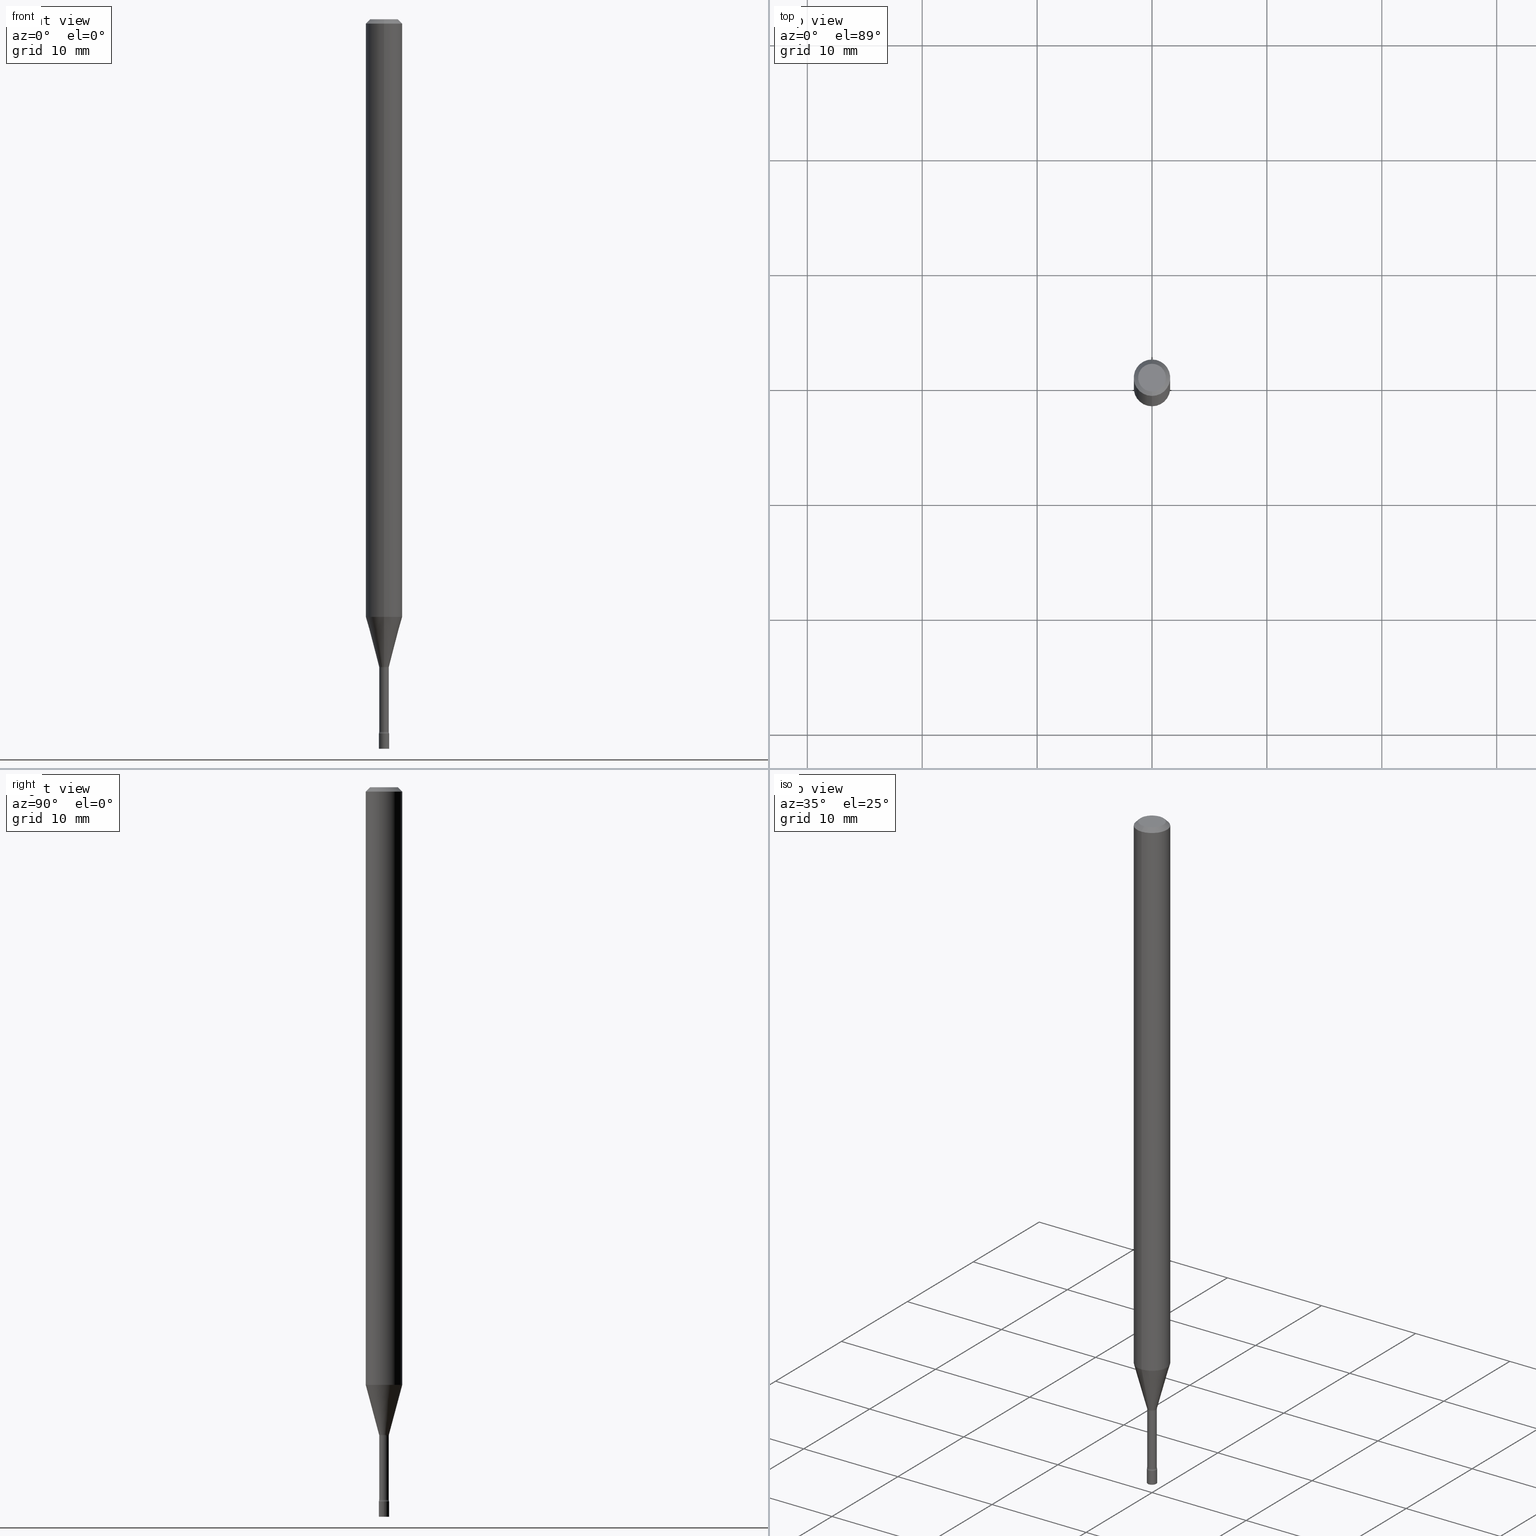
[diagram: canonical four-view strip — front | top / right | iso, engineering-drawing reading convention]
A machine part, canonical four-view strip (front | top / right | iso — engineering-drawing reading convention). The complete STEP part file that produces these views, byte-faithful:
ISO-10303-21;
HEADER;
FILE_DESCRIPTION (( 'STEP AP203' ),
    '1' );
FILE_NAME ('03568.STEP',
    '2024-03-08T21:51:53',
    ( '' ),
    ( '' ),
    'SwSTEP 2.0',
    'SolidWorks 2023',
    '' );
FILE_SCHEMA (( 'CONFIG_CONTROL_DESIGN' ));
ENDSEC;

DATA;
#1 = COORDINATED_UNIVERSAL_TIME_OFFSET ( 5, 0, .BEHIND. ) ;
#2 = ORIENTED_EDGE ( 'NONE', *, *, #162, .F. ) ;
#3 = AXIS2_PLACEMENT_3D ( 'NONE', #277, #78, #464 ) ;
#4 = CC_DESIGN_SECURITY_CLASSIFICATION ( #470, ( #181 ) ) ;
#5 = EDGE_LOOP ( 'NONE', ( #201, #366, #440, #289 ) ) ;
#6 = ORIENTED_EDGE ( 'NONE', *, *, #375, .T. ) ;
#7 = CARTESIAN_POINT ( 'NONE',  ( 5.433770030872598640E-29, -7.757983505809861225E-15, -2.221974787463810941 ) ) ;
#8 = ADVANCED_FACE ( 'NONE', ( #398 ), #501, .F. ) ;
#9 = EDGE_LOOP ( 'NONE', ( #246, #45, #182, #41 ) ) ;
#10 = CARTESIAN_POINT ( 'NONE',  ( 1.205159535236902994E-16, 0.01696111260565623738, -2.218092501787273019 ) ) ;
#11 = AXIS2_PLACEMENT_3D ( 'NONE', #221, #218, #410 ) ;
#12 = DIRECTION ( 'NONE',  ( -6.982962677686269077E-15, -1.000000000000000000, 0.000000000000000000 ) ) ;
#13 = CONICAL_SURFACE ( 'NONE', #282, 0.06250000000000000000, 0.7853981633974483900 ) ;
#14 = EDGE_CURVE ( 'NONE', #507, #408, #513, .T. ) ;
#15 = VERTEX_POINT ( 'NONE', #40 ) ;
#16 = PERSON ( 'UNSPECIFIED', 'UNSPECIFIED', 'UNSPECIFIED', ('UNSPECIFIED'), ('UNSPECIFIED'), ('UNSPECIFIED') ) ;
#17 = DIRECTION ( 'NONE',  ( -2.445474882117663178E-29, 3.491472637761947408E-15, 1.000000000000000000 ) ) ;
#18 = CYLINDRICAL_SURFACE ( 'NONE', #230, 0.01645000000000000975 ) ;
#19 = CLOSED_SHELL ( 'NONE', ( #8, #308, #488, #383, #124, #413, #52, #104, #452, #399, #156, #138, #120, #227 ) ) ;
#20 = PERSON_AND_ORGANIZATION ( #16, #125 ) ;
#21 = APPROVAL_PERSON_ORGANIZATION ( #74, #243, #393 ) ;
#22 = ORIENTED_EDGE ( 'NONE', *, *, #28, .T. ) ;
#23 = PLANE ( 'NONE',  #430 ) ;
#24 = CARTESIAN_POINT ( 'NONE',  ( 5.984062168735030320E-29, -8.543654836149177676E-15, -2.447000000000000064 ) ) ;
#25 = CALENDAR_DATE ( 2024, 8, 3 ) ;
#26 = DIRECTION ( 'NONE',  ( 1.000000000000000000, -6.982962677686248567E-15, 0.000000000000000000 ) ) ;
#27 = VECTOR ( 'NONE', #307, 39.37007874015748143 ) ;
#28 = EDGE_CURVE ( 'NONE', #408, #507, #122, .T. ) ;
#29 = CARTESIAN_POINT ( 'NONE',  ( 0.000000000000000000, 0.000000000000000000, 0.000000000000000000 ) ) ;
#30 = DIRECTION ( 'NONE',  ( -2.445474882117663178E-29, 3.491472637761947014E-15, 1.000000000000000000 ) ) ;
#31 = PERSON_AND_ORGANIZATION_ROLE ( 'design_supplier' ) ;
#32 = DIRECTION ( 'NONE',  ( -2.445474882117663178E-29, 3.491472637761947408E-15, 1.000000000000000000 ) ) ;
#33 = VERTEX_POINT ( 'NONE', #231 ) ;
#34 = EDGE_CURVE ( 'NONE', #119, #482, #168, .T. ) ;
#35 = VECTOR ( 'NONE', #370, 39.37007874015748854 ) ;
#36 = PERSON_AND_ORGANIZATION ( #16, #125 ) ;
#37 = LINE ( 'NONE', #313, #223 ) ;
#38 = DATE_TIME_ROLE ( 'creation_date' ) ;
#39 = CC_DESIGN_PERSON_AND_ORGANIZATION_ASSIGNMENT ( #396, #358, ( #470 ) ) ;
#40 = CARTESIAN_POINT ( 'NONE',  ( -1.148697360478847435E-16, -0.01645000000000775703, -2.221974787463810941 ) ) ;
#41 = ORIENTED_EDGE ( 'NONE', *, *, #205, .F. ) ;
#42 = VERTEX_POINT ( 'NONE', #520 ) ;
#43 = VECTOR ( 'NONE', #443, 39.37007874015748143 ) ;
#44 = CIRCLE ( 'NONE', #244, 0.06250000000000000000 ) ;
#45 = ORIENTED_EDGE ( 'NONE', *, *, #34, .T. ) ;
#46 = EDGE_CURVE ( 'NONE', #134, #172, #112, .T. ) ;
#47 = ORIENTED_EDGE ( 'NONE', *, *, #439, .F. ) ;
#48 = DIRECTION ( 'NONE',  ( -2.445474882117662617E-29, 3.491472637761947408E-15, 1.000000000000000000 ) ) ;
#49 = CARTESIAN_POINT ( 'NONE',  ( 0.000000000000000000, 0.000000000000000000, 0.000000000000000000 ) ) ;
#50 = ORIENTED_EDGE ( 'NONE', *, *, #14, .F. ) ;
#51 = DIRECTION ( 'NONE',  ( -2.445468806185136597E-29, 3.491481338843145583E-15, 1.000000000000000000 ) ) ;
#52 = ADVANCED_FACE ( 'NONE', ( #147 ), #92, .T. ) ;
#53 = VECTOR ( 'NONE', #362, 39.37007874015748854 ) ;
#54 = DIRECTION ( 'NONE',  ( -2.445474882117663178E-29, 3.491472637761947014E-15, 1.000000000000000000 ) ) ;
#55 = CIRCLE ( 'NONE', #155, 0.01750000000000000167 ) ;
#56 = FACE_OUTER_BOUND ( 'NONE', #261, .T. ) ;
#57 = ORIENTED_EDGE ( 'NONE', *, *, #339, .F. ) ;
#58 = LINE ( 'NONE', #10, #35 ) ;
#59 = DIRECTION ( 'NONE',  ( -2.445474882117663178E-29, 3.491472637761947014E-15, 1.000000000000000000 ) ) ;
#60 = DIRECTION ( 'NONE',  ( 0.000000000000000000, 0.000000000000000000, 1.000000000000000000 ) ) ;
#61 = EDGE_LOOP ( 'NONE', ( #2, #497 ) ) ;
#62 = EDGE_CURVE ( 'NONE', #482, #135, #102, .T. ) ;
#63 = AXIS2_PLACEMENT_3D ( 'NONE', #388, #30, #512 ) ;
#64 = CC_DESIGN_APPROVAL ( #187, ( #278 ) ) ;
#65 = CC_DESIGN_PERSON_AND_ORGANIZATION_ASSIGNMENT ( #36, #31, ( #181 ) ) ;
#66 = ORIENTED_EDGE ( 'NONE', *, *, #360, .F. ) ;
#67 = FACE_OUTER_BOUND ( 'NONE', #87, .T. ) ;
#68 =( LENGTH_UNIT ( ) NAMED_UNIT ( * ) SI_UNIT ( $, .METRE. ) );
#69 = CARTESIAN_POINT ( 'NONE',  ( 5.970594172971329806E-29, -8.524383684553957544E-15, -2.441486607215153093 ) ) ;
#70 = EDGE_CURVE ( 'NONE', #91, #42, #37, .T. ) ;
#71 = CARTESIAN_POINT ( 'NONE',  ( 3.668212323176501949E-31, -5.237208956642930826E-17, -0.01500000000000003067 ) ) ;
#72 = DIRECTION ( 'NONE',  ( -6.982962677686266711E-15, -1.000000000000000000, 0.000000000000000000 ) ) ;
#73 = CIRCLE ( 'NONE', #346, 0.01645000000000001669 ) ;
#74 = PERSON_AND_ORGANIZATION ( #16, #125 ) ;
#75 = FACE_OUTER_BOUND ( 'NONE', #467, .T. ) ;
#76 = DIRECTION ( 'NONE',  ( -6.982962677686265133E-15, -1.000000000000000000, 3.491472637761947014E-15 ) ) ;
#77 = ORIENTED_EDGE ( 'NONE', *, *, #509, .F. ) ;
#78 = DIRECTION ( 'NONE',  ( -2.445474882117663178E-29, 3.491472637761947014E-15, 1.000000000000000000 ) ) ;
#79 = CYLINDRICAL_SURFACE ( 'NONE', #312, 0.01645000000000000975 ) ;
#80 = DIRECTION ( 'NONE',  ( 6.982962677686265922E-15, 1.000000000000000000, -3.491472637761947408E-15 ) ) ;
#81 = VERTEX_POINT ( 'NONE', #319 ) ;
#82 = EDGE_CURVE ( 'NONE', #33, #81, #118, .T. ) ;
#83 = CC_DESIGN_DATE_AND_TIME_ASSIGNMENT ( #356, #276, ( #470 ) ) ;
#84 = DIRECTION ( 'NONE',  ( -2.445474882117663178E-29, 3.491472637761947014E-15, 1.000000000000000000 ) ) ;
#85 =( GEOMETRIC_REPRESENTATION_CONTEXT ( 3 ) GLOBAL_UNCERTAINTY_ASSIGNED_CONTEXT ( ( #300 ) ) GLOBAL_UNIT_ASSIGNED_CONTEXT ( ( #139, #178, #304 ) ) REPRESENTATION_CONTEXT ( 'NONE', 'WORKASPACE' ) );
#86 = CARTESIAN_POINT ( 'NONE',  ( 5.424289499334304778E-29, -7.744409278015207113E-15, -2.218092501787273019 ) ) ;
#87 = EDGE_LOOP ( 'NONE', ( #298, #259, #251, #302 ) ) ;
#88 = CC_DESIGN_PERSON_AND_ORGANIZATION_ASSIGNMENT ( #423, #479, ( #278 ) ) ;
#89 = ORIENTED_EDGE ( 'NONE', *, *, #82, .T. ) ;
#90 = LINE ( 'NONE', #177, #53 ) ;
#91 = VERTEX_POINT ( 'NONE', #198 ) ;
#92 = CONICAL_SURFACE ( 'NONE', #3, 0.01696111260566398118, 0.2617993877991500740 ) ;
#93 = DIRECTION ( 'NONE',  ( 1.000000000000000000, -6.982962677686303787E-15, 0.000000000000000000 ) ) ;
#94 = ORIENTED_EDGE ( 'NONE', *, *, #235, .F. ) ;
#95 = CARTESIAN_POINT ( 'NONE',  ( 3.840629472727447874E-16, 0.04749999999999999362, -1.947592745229184365E-16 ) ) ;
#96 = EDGE_CURVE ( 'NONE', #15, #453, #154, .T. ) ;
#97 = ORIENTED_EDGE ( 'NONE', *, *, #250, .T. ) ;
#98 = ORIENTED_EDGE ( 'NONE', *, *, #292, .T. ) ;
#99 = DIRECTION ( 'NONE',  ( 1.000000000000000000, 0.000000000000000000, 0.000000000000000000 ) ) ;
#100 = VERTEX_POINT ( 'NONE', #385 ) ;
#101 = PERSON_AND_ORGANIZATION ( #16, #125 ) ;
#102 = CIRCLE ( 'NONE', #215, 0.01750000000000000167 ) ;
#103 = AXIS2_PLACEMENT_3D ( 'NONE', #506, #191, #149 ) ;
#104 = ADVANCED_FACE ( 'NONE', ( #351 ), #195, .T. ) ;
#105 = CARTESIAN_POINT ( 'NONE',  ( 5.008672627075734005E-29, -7.151021487408906402E-15, -2.048139060311453541 ) ) ;
#106 = SHAPE_DEFINITION_REPRESENTATION ( #128, #121 ) ;
#107 = DIRECTION ( 'NONE',  ( -6.982962677686265922E-15, -1.000000000000000000, 0.000000000000000000 ) ) ;
#108 = DIRECTION ( 'NONE',  ( -6.982962677686265922E-15, -1.000000000000000000, 3.483106191921935554E-15 ) ) ;
#109 = PLANE ( 'NONE',  #376 ) ;
#110 = DIRECTION ( 'NONE',  ( -2.445474882117663178E-29, 3.491472637761947014E-15, 1.000000000000000000 ) ) ;
#111 = ORIENTED_EDGE ( 'NONE', *, *, #324, .F. ) ;
#112 = CIRCLE ( 'NONE', #442, 0.01696111260566398118 ) ;
#113 = LOCAL_TIME ( 16, 51, 53.00000000000000000, #1 ) ;
#114 = ORIENTED_EDGE ( 'NONE', *, *, #292, .F. ) ;
#115 = MANIFOLD_SOLID_BREP ( 'Body-Move/Copy2[1]', #352 ) ;
#116 = CALENDAR_DATE ( 2024, 8, 3 ) ;
#117 = CARTESIAN_POINT ( 'NONE',  ( 5.424289499334304778E-29, -7.744409278015207113E-15, -2.218092501787273019 ) ) ;
#118 = LINE ( 'NONE', #471, #503 ) ;
#119 = VERTEX_POINT ( 'NONE', #309 ) ;
#120 = ADVANCED_FACE ( 'NONE', ( #436 ), #79, .T. ) ;
#121 = ADVANCED_BREP_SHAPE_REPRESENTATION ( '03568', ( #115, #290, #337 ), #85 ) ;
#122 = CIRCLE ( 'NONE', #409, 0.04749999999999999362 ) ;
#123 = TOROIDAL_SURFACE ( 'NONE', #502, 0.03145000000000002655, 0.01500000000000000812 ) ;
#124 = ADVANCED_FACE ( 'NONE', ( #75 ), #236, .T. ) ;
#125 = ORGANIZATION ( 'UNSPECIFIED', 'UNSPECIFIED', '' ) ;
#126 = EDGE_LOOP ( 'NONE', ( #321, #169, #378, #47 ) ) ;
#127 = DIRECTION ( 'NONE',  ( -6.982962677686266711E-15, -1.000000000000000000, 0.000000000000000000 ) ) ;
#128 = PRODUCT_DEFINITION_SHAPE ( 'NONE', 'NONE',  #278 ) ;
#129 = ORIENTED_EDGE ( 'NONE', *, *, #82, .F. ) ;
#130 = COORDINATED_UNIVERSAL_TIME_OFFSET ( 5, 0, .BEHIND. ) ;
#131 = APPLICATION_PROTOCOL_DEFINITION ( 'international standard', 'config_control_design', 1994, #186 ) ;
#132 = CARTESIAN_POINT ( 'NONE',  ( -1.148697360478794680E-16, -0.01645000000000854112, -2.441486607215153093 ) ) ;
#133 = DIRECTION ( 'NONE',  ( -2.445474882117663178E-29, 3.491472637761947014E-15, 1.000000000000000000 ) ) ;
#134 = VERTEX_POINT ( 'NONE', #426 ) ;
#135 = VERTEX_POINT ( 'NONE', #180 ) ;
#136 = AXIS2_PLACEMENT_3D ( 'NONE', #456, #59, #108 ) ;
#137 = CARTESIAN_POINT ( 'NONE',  ( -0.01750000000000000167, -8.511834112870504850E-15, -2.447000000000000064 ) ) ;
#138 = ADVANCED_FACE ( 'NONE', ( #184 ), #123, .F. ) ;
#139 =( CONVERSION_BASED_UNIT ( 'INCH', #190 ) LENGTH_UNIT ( ) NAMED_UNIT ( #310 ) );
#140 = ORIENTED_EDGE ( 'NONE', *, *, #46, .F. ) ;
#141 = DIRECTION ( 'NONE',  ( -6.982962677686265133E-15, -1.000000000000000000, 0.000000000000000000 ) ) ;
#142 = DIRECTION ( 'NONE',  ( -2.445474882117663178E-29, 3.491472637761947014E-15, 1.000000000000000000 ) ) ;
#143 = CC_DESIGN_PERSON_AND_ORGANIZATION_ASSIGNMENT ( #387, #515, ( #181 ) ) ;
#144 = CARTESIAN_POINT ( 'NONE',  ( -0.01750000000000000167, 1.243449787580175444E-16, -8.608136407946085539E-31 ) ) ;
#145 = AXIS2_PLACEMENT_3D ( 'NONE', #226, #427, #232 ) ;
#146 = DIRECTION ( 'NONE',  ( -6.982962677686265133E-15, -1.000000000000000000, 3.491472637761947014E-15 ) ) ;
#147 = FACE_OUTER_BOUND ( 'NONE', #166, .T. ) ;
#148 = CARTESIAN_POINT ( 'NONE',  ( -4.287811248607203282E-16, -0.06250000000000005551, -0.01499999999999981209 ) ) ;
#149 = DIRECTION ( 'NONE',  ( 7.105427357601001859E-15, 1.000000000000000000, 0.000000000000000000 ) ) ;
#150 = DIRECTION ( 'NONE',  ( -2.445474882117663178E-29, 3.491472637761947014E-15, 1.000000000000000000 ) ) ;
#151 = DIRECTION ( 'NONE',  ( -6.982962677686265922E-15, -1.000000000000000000, 4.370956789862821150E-15 ) ) ;
#152 = COORDINATED_UNIVERSAL_TIME_OFFSET ( 5, 0, .BEHIND. ) ;
#153 = CARTESIAN_POINT ( 'NONE',  ( 5.433770030872598640E-29, -7.757983505809861225E-15, -2.221974787463810941 ) ) ;
#154 = CIRCLE ( 'NONE', #421, 0.01644999999999999934 ) ;
#155 = AXIS2_PLACEMENT_3D ( 'NONE', #188, #237, #197 ) ;
#156 = ADVANCED_FACE ( 'NONE', ( #517 ), #486, .F. ) ;
#157 = CARTESIAN_POINT ( 'NONE',  ( -2.196141762131786801E-16, -0.03145000000000775647, -2.221974787463810941 ) ) ;
#158 = CALENDAR_DATE ( 2024, 8, 3 ) ;
#159 = CARTESIAN_POINT ( 'NONE',  ( 7.070925363597821194E-46, -1.009535718857196904E-31, -2.891432422922594549E-17 ) ) ;
#160 = ORIENTED_EDGE ( 'NONE', *, *, #96, .T. ) ;
#161 = APPROVAL_STATUS ( 'not_yet_approved' ) ;
#162 = EDGE_CURVE ( 'NONE', #91, #100, #280, .T. ) ;
#163 = CIRCLE ( 'NONE', #136, 0.06250000000000000000 ) ;
#164 = ORIENTED_EDGE ( 'NONE', *, *, #518, .F. ) ;
#165 = CARTESIAN_POINT ( 'NONE',  ( -2.196141762131735032E-16, -0.03145000000000854751, -2.441486607215153537 ) ) ;
#166 = EDGE_LOOP ( 'NONE', ( #454, #415, #209, #400 ) ) ;
#167 = CARTESIAN_POINT ( 'NONE',  ( -1.148697360479391256E-16, -0.01645000000000000975, 5.743472489118406147E-17 ) ) ;
#168 = CIRCLE ( 'NONE', #459, 0.01500000000000000638 ) ;
#169 = ORIENTED_EDGE ( 'NONE', *, *, #176, .T. ) ;
#170 = EDGE_LOOP ( 'NONE', ( #446, #97, #164, #371 ) ) ;
#171 = FACE_OUTER_BOUND ( 'NONE', #438, .T. ) ;
#172 = VERTEX_POINT ( 'NONE', #174 ) ;
#173 = FACE_OUTER_BOUND ( 'NONE', #170, .T. ) ;
#174 = CARTESIAN_POINT ( 'NONE',  ( 2.823025816869016397E-16, 0.01696111260565623738, -2.218092501787273019 ) ) ;
#175 = EDGE_LOOP ( 'NONE', ( #94, #332, #285, #111 ) ) ;
#176 = EDGE_CURVE ( 'NONE', #100, #91, #202, .T. ) ;
#177 = CARTESIAN_POINT ( 'NONE',  ( -1.184388162973313820E-16, -0.01696111260567172499, -2.218092501787273019 ) ) ;
#178 =( NAMED_UNIT ( * ) PLANE_ANGLE_UNIT ( ) SI_UNIT ( $, .RADIAN. ) );
#179 = VECTOR ( 'NONE', #17, 39.37007874015748143 ) ;
#180 = CARTESIAN_POINT ( 'NONE',  ( -1.222018468594498077E-16, -0.01750000000000855038, -2.447000000000000064 ) ) ;
#181 = PRODUCT_DEFINITION_FORMATION_WITH_SPECIFIED_SOURCE ( 'ANY', '', #365, .NOT_KNOWN. ) ;
#182 = ORIENTED_EDGE ( 'NONE', *, *, #62, .T. ) ;
#183 = VERTEX_POINT ( 'NONE', #132 ) ;
#184 = FACE_OUTER_BOUND ( 'NONE', #340, .T. ) ;
#185 = FACE_OUTER_BOUND ( 'NONE', #404, .T. ) ;
#186 = APPLICATION_CONTEXT ( 'configuration controlled 3d designs of mechanical parts and assemblies' ) ;
#187 = APPROVAL ( #494, 'UNSPECIFIED' ) ;
#188 = CARTESIAN_POINT ( 'NONE',  ( 5.984062168735030320E-29, -8.543654836149177676E-15, -2.447000000000000064 ) ) ;
#189 = VERTEX_POINT ( 'NONE', #367 ) ;
#190 = LENGTH_MEASURE_WITH_UNIT ( LENGTH_MEASURE( 0.02539999999999999897 ), #68 );
#191 = DIRECTION ( 'NONE',  ( 1.000000000000000000, -7.105427357601001070E-15, 4.926315401984569729E-29 ) ) ;
#192 = VECTOR ( 'NONE', #495, 39.37007874015748143 ) ;
#193 = DIRECTION ( 'NONE',  ( -2.445474882117663178E-29, 3.491472637761947014E-15, 1.000000000000000000 ) ) ;
#194 = DIRECTION ( 'NONE',  ( 1.000000000000000000, -6.982962677686265922E-15, 4.876176775795935793E-29 ) ) ;
#195 = CYLINDRICAL_SURFACE ( 'NONE', #248, 0.06250000000000000000 ) ;
#196 = CYLINDRICAL_SURFACE ( 'NONE', #145, 0.01750000000000000167 ) ;
#197 = DIRECTION ( 'NONE',  ( 1.000000000000000000, -6.982962677686248567E-15, 0.000000000000000000 ) ) ;
#198 = CARTESIAN_POINT ( 'NONE',  ( 0.01750000000000000167, -8.850905193967374926E-15, -2.500000000000000000 ) ) ;
#199 = ADVANCED_FACE ( 'NONE', ( #402 ), #214, .T. ) ;
#200 = APPROVAL ( #161, 'UNSPECIFIED' ) ;
#201 = ORIENTED_EDGE ( 'NONE', *, *, #329, .T. ) ;
#202 = CIRCLE ( 'NONE', #394, 0.01750000000000000167 ) ;
#203 = CC_DESIGN_APPROVAL ( #243, ( #181 ) ) ;
#204 = DIRECTION ( 'NONE',  ( -2.445468806185136877E-29, 3.491481338843145188E-15, 1.000000000000000000 ) ) ;
#205 = EDGE_CURVE ( 'NONE', #183, #135, #265, .T. ) ;
#206 = DATE_AND_TIME ( #317, #444 ) ;
#207 = ORIENTED_EDGE ( 'NONE', *, *, #14, .T. ) ;
#208 = DIRECTION ( 'NONE',  ( -2.445474882117663178E-29, 3.491472637761947014E-15, 1.000000000000000000 ) ) ;
#209 = ORIENTED_EDGE ( 'NONE', *, *, #219, .T. ) ;
#210 = CIRCLE ( 'NONE', #491, 0.01645000000000001669 ) ;
#211 = AXIS2_PLACEMENT_3D ( 'NONE', #445, #133, #294 ) ;
#212 = ORIENTED_EDGE ( 'NONE', *, *, #481, .T. ) ;
#213 = DIRECTION ( 'NONE',  ( -1.000000000000000000, 6.982962677686265922E-15, -4.883557194083112340E-29 ) ) ;
#214 = CYLINDRICAL_SURFACE ( 'NONE', #271, 0.01750000000000000167 ) ;
#215 = AXIS2_PLACEMENT_3D ( 'NONE', #390, #240, #107 ) ;
#216 = ORIENTED_EDGE ( 'NONE', *, *, #286, .F. ) ;
#217 = DATE_AND_TIME ( #379, #369 ) ;
#218 = DIRECTION ( 'NONE',  ( 2.438088387897960049E-29, -3.491481338843145188E-15, -1.000000000000000000 ) ) ;
#219 = EDGE_CURVE ( 'NONE', #134, #189, #90, .T. ) ;
#220 = VERTEX_POINT ( 'NONE', #137 ) ;
#221 = CARTESIAN_POINT ( 'NONE',  ( 1.222018468595707746E-16, 0.01749999999999127254, -2.500000000000000000 ) ) ;
#222 = EDGE_LOOP ( 'NONE', ( #57, #397 ) ) ;
#223 = VECTOR ( 'NONE', #204, 39.37007874015748143 ) ;
#224 = CIRCLE ( 'NONE', #492, 0.01500000000000002373 ) ;
#225 = PERSON_AND_ORGANIZATION_ROLE ( 'design_owner' ) ;
#226 = CARTESIAN_POINT ( 'NONE',  ( 0.000000000000000000, 0.000000000000000000, 0.000000000000000000 ) ) ;
#227 = ADVANCED_FACE ( 'NONE', ( #171 ), #401, .F. ) ;
#228 = CARTESIAN_POINT ( 'NONE',  ( 5.970579338663440992E-29, -8.524404928127173343E-15, -2.441486607215153537 ) ) ;
#229 = FACE_OUTER_BOUND ( 'NONE', #516, .T. ) ;
#230 = AXIS2_PLACEMENT_3D ( 'NONE', #490, #291, #447 ) ;
#231 = CARTESIAN_POINT ( 'NONE',  ( 4.440892098501126102E-16, 0.06249999999999283906, -2.048139060311453985 ) ) ;
#232 = DIRECTION ( 'NONE',  ( 1.000000000000000000, -6.982962677686265922E-15, 4.876176775795936353E-29 ) ) ;
#233 = DIRECTION ( 'NONE',  ( 2.445474882117663178E-29, -3.491472637761947014E-15, -1.000000000000000000 ) ) ;
#234 = APPROVAL_STATUS ( 'not_yet_approved' ) ;
#235 = EDGE_CURVE ( 'NONE', #119, #453, #258, .T. ) ;
#236 = CYLINDRICAL_SURFACE ( 'NONE', #63, 0.06250000000000000000 ) ;
#237 = DIRECTION ( 'NONE',  ( -2.445468806185136597E-29, 3.491481338843145583E-15, 1.000000000000000000 ) ) ;
#238 = DIRECTION ( 'NONE',  ( 7.105427357601000281E-15, 1.000000000000000000, 0.000000000000000000 ) ) ;
#239 = COORDINATED_UNIVERSAL_TIME_OFFSET ( 5, 0, .BEHIND. ) ;
#240 = DIRECTION ( 'NONE',  ( -2.445474882117663178E-29, 3.491472637761947014E-15, 1.000000000000000000 ) ) ;
#241 = CARTESIAN_POINT ( 'NONE',  ( 5.970579338663440992E-29, -8.524404928127173343E-15, -2.441486607215153537 ) ) ;
#242 = AXIS2_PLACEMENT_3D ( 'NONE', #7, #448, #412 ) ;
#243 = APPROVAL ( #234, 'UNSPECIFIED' ) ;
#244 = AXIS2_PLACEMENT_3D ( 'NONE', #105, #267, #374 ) ;
#245 = ORIENTED_EDGE ( 'NONE', *, *, #468, .T. ) ;
#246 = ORIENTED_EDGE ( 'NONE', *, *, #405, .F. ) ;
#247 = ORIENTED_EDGE ( 'NONE', *, *, #391, .F. ) ;
#248 = AXIS2_PLACEMENT_3D ( 'NONE', #29, #150, #272 ) ;
#249 = APPROVAL_PERSON_ORGANIZATION ( #519, #200, #320 ) ;
#250 = EDGE_CURVE ( 'NONE', #172, #33, #58, .T. ) ;
#251 = ORIENTED_EDGE ( 'NONE', *, *, #458, .F. ) ;
#252 = CARTESIAN_POINT ( 'NONE',  ( 6.113672015462842613E-29, -8.728703347107864943E-15, -2.500000000000000000 ) ) ;
#253 = DIRECTION ( 'NONE',  ( 1.000000000000000000, -6.982962677686265922E-15, 4.876176775795936353E-29 ) ) ;
#254 = ADVANCED_FACE ( 'NONE', ( #489 ), #325, .T. ) ;
#255 = AXIS2_PLACEMENT_3D ( 'NONE', #500, #193, #348 ) ;
#256 = AXIS2_PLACEMENT_3D ( 'NONE', #386, #514, #26 ) ;
#257 = CARTESIAN_POINT ( 'NONE',  ( 5.970594172971329806E-29, -8.524383684553957544E-15, -2.441486607215153093 ) ) ;
#258 = LINE ( 'NONE', #334, #297 ) ;
#259 = ORIENTED_EDGE ( 'NONE', *, *, #347, .T. ) ;
#260 = LINE ( 'NONE', #148, #27 ) ;
#261 = EDGE_LOOP ( 'NONE', ( #499, #381 ) ) ;
#262 = FACE_OUTER_BOUND ( 'NONE', #354, .T. ) ;
#263 = CARTESIAN_POINT ( 'NONE',  ( 5.008672627075734005E-29, -7.151021487408906402E-15, -2.048139060311453541 ) ) ;
#264 = ORIENTED_EDGE ( 'NONE', *, *, #329, .F. ) ;
#265 = CIRCLE ( 'NONE', #353, 0.01500000000000000638 ) ;
#266 = DIRECTION ( 'NONE',  ( -2.438088387897960049E-29, 3.491481338843145188E-15, 1.000000000000000000 ) ) ;
#267 = DIRECTION ( 'NONE',  ( -2.445474882117663178E-29, 3.491472637761947014E-15, 1.000000000000000000 ) ) ;
#268 = CARTESIAN_POINT ( 'NONE',  ( 5.433783531441482986E-29, -7.757964172226814297E-15, -2.221974787463810941 ) ) ;
#269 = CARTESIAN_POINT ( 'NONE',  ( 3.668212323176501949E-31, -5.237208956642930826E-17, -0.01500000000000003067 ) ) ;
#270 = EDGE_CURVE ( 'NONE', #183, #15, #441, .T. ) ;
#271 = AXIS2_PLACEMENT_3D ( 'NONE', #49, #480, #253 ) ;
#272 = DIRECTION ( 'NONE',  ( -6.982962677686265922E-15, -1.000000000000000000, 3.491472637761947014E-15 ) ) ;
#273 = TOROIDAL_SURFACE ( 'NONE', #485, 0.03145000000000002655, 0.01500000000000000812 ) ;
#274 = CARTESIAN_POINT ( 'NONE',  ( 1.168842800325962075E-16, 0.01644999999999224166, -2.221974787463810941 ) ) ;
#275 = DIRECTION ( 'NONE',  ( -2.445474882117663178E-29, 3.491472637761947014E-15, 1.000000000000000000 ) ) ;
#276 = DATE_TIME_ROLE ( 'classification_date' ) ;
#277 = CARTESIAN_POINT ( 'NONE',  ( 5.424289499334304778E-29, -7.744409278015207113E-15, -2.218092501787273019 ) ) ;
#278 = PRODUCT_DEFINITION ( 'UNKNOWN', '', #181, #419 ) ;
#279 = DIRECTION ( 'NONE',  ( -2.445474882117663178E-29, 3.491472637761947014E-15, 1.000000000000000000 ) ) ;
#280 = CIRCLE ( 'NONE', #483, 0.01750000000000000167 ) ;
#281 = VECTOR ( 'NONE', #305, 39.37007874015748143 ) ;
#282 = AXIS2_PLACEMENT_3D ( 'NONE', #71, #233, #425 ) ;
#283 = SECURITY_CLASSIFICATION_LEVEL ( 'unclassified' ) ;
#284 = ORIENTED_EDGE ( 'NONE', *, *, #34, .F. ) ;
#285 = ORIENTED_EDGE ( 'NONE', *, *, #270, .T. ) ;
#286 = EDGE_CURVE ( 'NONE', #172, #134, #469, .T. ) ;
#287 = DIRECTION ( 'NONE',  ( -6.982962677686265922E-15, -1.000000000000000000, 3.491472637761947408E-15 ) ) ;
#288 = AXIS2_PLACEMENT_3D ( 'NONE', #159, #318, #357 ) ;
#289 = ORIENTED_EDGE ( 'NONE', *, *, #270, .F. ) ;
#290 = MANIFOLD_SOLID_BREP ( 'Body-Move/Copy2[2]', #19 ) ;
#291 = DIRECTION ( 'NONE',  ( -2.445474882117663178E-29, 3.491472637761947014E-15, 1.000000000000000000 ) ) ;
#292 = EDGE_CURVE ( 'NONE', #189, #361, #327, .T. ) ;
#293 = DIRECTION ( 'NONE',  ( -2.445474882117663178E-29, 3.491472637761947408E-15, 1.000000000000000000 ) ) ;
#294 = DIRECTION ( 'NONE',  ( -6.982962677686266711E-15, -1.000000000000000000, 0.000000000000000000 ) ) ;
#295 = ORIENTED_EDGE ( 'NONE', *, *, #481, .F. ) ;
#296 = DIRECTION ( 'NONE',  ( -2.445474882117663178E-29, 3.491472637761947014E-15, 1.000000000000000000 ) ) ;
#297 = VECTOR ( 'NONE', #293, 39.37007874015748143 ) ;
#298 = ORIENTED_EDGE ( 'NONE', *, *, #162, .T. ) ;
#299 = DIRECTION ( 'NONE',  ( -6.982962677686265922E-15, -1.000000000000000000, 0.000000000000000000 ) ) ;
#300 = UNCERTAINTY_MEASURE_WITH_UNIT (LENGTH_MEASURE( 1.000000000000000082E-05 ), #139, 'distance_accuracy_value', 'NONE');
#301 = DIRECTION ( 'NONE',  ( -2.445474882117663178E-29, 3.491472637761947014E-15, 1.000000000000000000 ) ) ;
#302 = ORIENTED_EDGE ( 'NONE', *, *, #70, .F. ) ;
#303 = AXIS2_PLACEMENT_3D ( 'NONE', #86, #54, #127 ) ;
#304 =( NAMED_UNIT ( * ) SI_UNIT ( $, .STERADIAN. ) SOLID_ANGLE_UNIT ( ) );
#305 = DIRECTION ( 'NONE',  ( 4.937700262164548042E-15, 0.7071067811865451302, -0.7071067811865499042 ) ) ;
#306 = ORIENTED_EDGE ( 'NONE', *, *, #468, .F. ) ;
#307 = DIRECTION ( 'NONE',  ( -4.851104656540964275E-15, -0.7071067811865500152, -0.7071067811865450192 ) ) ;
#308 = ADVANCED_FACE ( 'NONE', ( #484 ), #18, .T. ) ;
#309 = CARTESIAN_POINT ( 'NONE',  ( 1.206146293953368650E-16, 0.01644999999999149226, -2.441486607215153093 ) ) ;
#310 = DIMENSIONAL_EXPONENTS ( 1.000000000000000000, 0.000000000000000000, 0.000000000000000000, 0.000000000000000000, 0.000000000000000000, 0.000000000000000000, 0.000000000000000000 ) ;
#311 = LINE ( 'NONE', #498, #281 ) ;
#312 = AXIS2_PLACEMENT_3D ( 'NONE', #466, #110, #76 ) ;
#313 = CARTESIAN_POINT ( 'NONE',  ( 0.01750000000000000167, -1.222018468595096625E-16, 8.533309357642889039E-31 ) ) ;
#314 = CIRCLE ( 'NONE', #103, 0.01500000000000002373 ) ;
#315 = DIRECTION ( 'NONE',  ( -6.982962677686266711E-15, -1.000000000000000000, 0.000000000000000000 ) ) ;
#316 = ADVANCED_FACE ( 'NONE', ( #67 ), #196, .T. ) ;
#317 = CALENDAR_DATE ( 2024, 8, 3 ) ;
#318 = DIRECTION ( 'NONE',  ( -2.445474882117663178E-29, 3.491472637761947014E-15, 1.000000000000000000 ) ) ;
#319 = CARTESIAN_POINT ( 'NONE',  ( 4.440892098501130047E-16, 0.06249999999999995143, -0.01500000000000024751 ) ) ;
#320 = APPROVAL_ROLE ( '' ) ;
#321 = ORIENTED_EDGE ( 'NONE', *, *, #347, .F. ) ;
#322 = CIRCLE ( 'NONE', #368, 0.01644999999999999934 ) ;
#323 = ORIENTED_EDGE ( 'NONE', *, *, #375, .F. ) ;
#324 = EDGE_CURVE ( 'NONE', #453, #15, #322, .T. ) ;
#325 = PLANE ( 'NONE',  #11 ) ;
#326 = ORIENTED_EDGE ( 'NONE', *, *, #339, .T. ) ;
#327 = LINE ( 'NONE', #373, #179 ) ;
#328 = AXIS2_PLACEMENT_3D ( 'NONE', #406, #48, #287 ) ;
#329 = EDGE_CURVE ( 'NONE', #183, #119, #73, .T. ) ;
#330 = COORDINATED_UNIVERSAL_TIME_OFFSET ( 5, 0, .BEHIND. ) ;
#331 = DIRECTION ( 'NONE',  ( -6.982962677686265133E-15, -1.000000000000000000, 3.491472637761947014E-15 ) ) ;
#332 = ORIENTED_EDGE ( 'NONE', *, *, #405, .T. ) ;
#333 = DIRECTION ( 'NONE',  ( 1.000000000000000000, -6.982962677686303787E-15, 0.000000000000000000 ) ) ;
#334 = CARTESIAN_POINT ( 'NONE',  ( 1.168842800325365252E-16, 0.01645000000000000975, -5.743472489118406147E-17 ) ) ;
#335 = CONICAL_SURFACE ( 'NONE', #450, 0.06250000000000000000, 0.7853981633974483900 ) ;
#336 = APPLICATION_PROTOCOL_DEFINITION ( 'international standard', 'config_control_design', 1994, #414 ) ;
#337 = AXIS2_PLACEMENT_3D ( 'NONE', #417, #60, #99 ) ;
#338 = DIRECTION ( 'NONE',  ( -6.982962677686266711E-15, -1.000000000000000000, 0.000000000000000000 ) ) ;
#339 = EDGE_CURVE ( 'NONE', #135, #482, #435, .T. ) ;
#340 = EDGE_LOOP ( 'NONE', ( #284, #264, #359, #326 ) ) ;
#341 = CARTESIAN_POINT ( 'NONE',  ( 3.316907271900976096E-16, 0.04749999999999999362, -1.803021124083054268E-16 ) ) ;
#342 = DIRECTION ( 'NONE',  ( -2.445474882117663178E-29, 3.491472637761947014E-15, 1.000000000000000000 ) ) ;
#343 = APPROVAL_DATE_TIME ( #463, #200 ) ;
#344 = DIRECTION ( 'NONE',  ( -2.445474882117663178E-29, 3.491472637761947014E-15, 1.000000000000000000 ) ) ;
#345 = AXIS2_PLACEMENT_3D ( 'NONE', #153, #275, #395 ) ;
#346 = AXIS2_PLACEMENT_3D ( 'NONE', #69, #301, #380 ) ;
#347 = EDGE_CURVE ( 'NONE', #100, #220, #461, .T. ) ;
#348 = DIRECTION ( 'NONE',  ( -6.982962677686265922E-15, -1.000000000000000000, 3.483106191921935554E-15 ) ) ;
#349 = FACE_OUTER_BOUND ( 'NONE', #9, .T. ) ;
#350 = DIRECTION ( 'NONE',  ( -6.982962677686266711E-15, -1.000000000000000000, 3.491472637761947803E-15 ) ) ;
#351 = FACE_OUTER_BOUND ( 'NONE', #457, .T. ) ;
#352 = CLOSED_SHELL ( 'NONE', ( #316, #433, #199, #254 ) ) ;
#353 = AXIS2_PLACEMENT_3D ( 'NONE', #165, #213, #12 ) ;
#354 = EDGE_LOOP ( 'NONE', ( #22, #207 ) ) ;
#355 = AXIS2_PLACEMENT_3D ( 'NONE', #263, #342, #151 ) ;
#356 = DATE_AND_TIME ( #158, #113 ) ;
#357 = DIRECTION ( 'NONE',  ( -6.982962677686266711E-15, -1.000000000000000000, 3.491472637761947803E-15 ) ) ;
#358 = PERSON_AND_ORGANIZATION_ROLE ( 'classification_officer' ) ;
#359 = ORIENTED_EDGE ( 'NONE', *, *, #205, .T. ) ;
#360 = EDGE_CURVE ( 'NONE', #361, #81, #476, .T. ) ;
#361 = VERTEX_POINT ( 'NONE', #505 ) ;
#362 = DIRECTION ( 'NONE',  ( -1.807323732225328562E-15, -0.2588190451025179639, 0.9659258262890690894 ) ) ;
#363 = ORIENTED_EDGE ( 'NONE', *, *, #324, .T. ) ;
#364 = CC_DESIGN_PERSON_AND_ORGANIZATION_ASSIGNMENT ( #20, #225, ( #365 ) ) ;
#365 = PRODUCT ( '03568', '03568', '', ( #455 ) ) ;
#366 = ORIENTED_EDGE ( 'NONE', *, *, #235, .T. ) ;
#367 = CARTESIAN_POINT ( 'NONE',  ( -4.364351673553417740E-16, -0.06250000000000717482, -2.048139060311453541 ) ) ;
#368 = AXIS2_PLACEMENT_3D ( 'NONE', #382, #508, #338 ) ;
#369 = LOCAL_TIME ( 16, 51, 53.00000000000000000, #330 ) ;
#370 = DIRECTION ( 'NONE',  ( 1.839019923739598738E-15, 0.2588190451025247363, 0.9659258262890673130 ) ) ;
#371 = ORIENTED_EDGE ( 'NONE', *, *, #219, .F. ) ;
#372 = APPROVAL_DATE_TIME ( #217, #187 ) ;
#373 = CARTESIAN_POINT ( 'NONE',  ( -4.364351673553916201E-16, -0.06250000000000000000, 2.182170398601216884E-16 ) ) ;
#374 = DIRECTION ( 'NONE',  ( -6.982962677686265922E-15, -1.000000000000000000, 4.370956789862821150E-15 ) ) ;
#375 = EDGE_CURVE ( 'NONE', #507, #361, #260, .T. ) ;
#376 = AXIS2_PLACEMENT_3D ( 'NONE', #24, #266, #194 ) ;
#377 = CIRCLE ( 'NONE', #256, 0.01750000000000000167 ) ;
#378 = ORIENTED_EDGE ( 'NONE', *, *, #70, .T. ) ;
#379 = CALENDAR_DATE ( 2024, 8, 3 ) ;
#380 = DIRECTION ( 'NONE',  ( -6.982962677686265133E-15, -1.000000000000000000, 0.000000000000000000 ) ) ;
#381 = ORIENTED_EDGE ( 'NONE', *, *, #439, .T. ) ;
#382 = CARTESIAN_POINT ( 'NONE',  ( 5.433783531441482986E-29, -7.757964172226814297E-15, -2.221974787463810941 ) ) ;
#383 = ADVANCED_FACE ( 'NONE', ( #185 ), #335, .T. ) ;
#384 = CARTESIAN_POINT ( 'NONE',  ( 5.984077036541921896E-29, -8.543633544603484296E-15, -2.447000000000000064 ) ) ;
#385 = CARTESIAN_POINT ( 'NONE',  ( -0.01750000000000000167, -8.511834112870504850E-15, -2.500000000000000000 ) ) ;
#386 = CARTESIAN_POINT ( 'NONE',  ( 5.984062168735030320E-29, -8.543654836149177676E-15, -2.447000000000000064 ) ) ;
#387 = PERSON_AND_ORGANIZATION ( #16, #125 ) ;
#388 = CARTESIAN_POINT ( 'NONE',  ( 0.000000000000000000, 0.000000000000000000, 0.000000000000000000 ) ) ;
#389 = DATE_AND_TIME ( #116, #460 ) ;
#390 = CARTESIAN_POINT ( 'NONE',  ( 5.984077036541921896E-29, -8.543633544603484296E-15, -2.447000000000000064 ) ) ;
#391 = EDGE_CURVE ( 'NONE', #81, #361, #163, .T. ) ;
#392 = ORIENTED_EDGE ( 'NONE', *, *, #509, .T. ) ;
#393 = APPROVAL_ROLE ( '' ) ;
#394 = AXIS2_PLACEMENT_3D ( 'NONE', #407, #449, #93 ) ;
#395 = DIRECTION ( 'NONE',  ( -6.982962677686265133E-15, -1.000000000000000000, 3.491472637761947014E-15 ) ) ;
#396 = PERSON_AND_ORGANIZATION ( #16, #125 ) ;
#397 = ORIENTED_EDGE ( 'NONE', *, *, #62, .F. ) ;
#398 = FACE_OUTER_BOUND ( 'NONE', #474, .T. ) ;
#399 = ADVANCED_FACE ( 'NONE', ( #262 ), #23, .F. ) ;
#400 = ORIENTED_EDGE ( 'NONE', *, *, #475, .F. ) ;
#401 = TOROIDAL_SURFACE ( 'NONE', #242, 0.03144999999999999879, 0.01500000000000002373 ) ;
#402 = FACE_OUTER_BOUND ( 'NONE', #126, .T. ) ;
#403 = LOCAL_TIME ( 16, 51, 53.00000000000000000, #130 ) ;
#404 = EDGE_LOOP ( 'NONE', ( #50, #6, #493, #295 ) ) ;
#405 = EDGE_CURVE ( 'NONE', #119, #183, #210, .T. ) ;
#406 = CARTESIAN_POINT ( 'NONE',  ( 1.222018468595694927E-16, 0.01749999999999145642, -2.447000000000000064 ) ) ;
#407 = CARTESIAN_POINT ( 'NONE',  ( 6.113672015462842613E-29, -8.728703347107864943E-15, -2.500000000000000000 ) ) ;
#408 = VERTEX_POINT ( 'NONE', #95 ) ;
#409 = AXIS2_PLACEMENT_3D ( 'NONE', #428, #208, #350 ) ;
#410 = DIRECTION ( 'NONE',  ( -1.000000000000000000, 6.982962677686265922E-15, -4.876176775795935793E-29 ) ) ;
#411 = AXIS2_PLACEMENT_3D ( 'NONE', #384, #344, #299 ) ;
#412 = DIRECTION ( 'NONE',  ( -6.982962677686265133E-15, -1.000000000000000000, 3.491472637761947014E-15 ) ) ;
#413 = ADVANCED_FACE ( 'NONE', ( #173 ), #431, .T. ) ;
#414 = APPLICATION_CONTEXT ( 'configuration controlled 3d designs of mechanical parts and assemblies' ) ;
#415 = ORIENTED_EDGE ( 'NONE', *, *, #286, .T. ) ;
#416 = DIRECTION ( 'NONE',  ( 2.445474882117663178E-29, -3.491472637761947014E-15, -1.000000000000000000 ) ) ;
#417 = CARTESIAN_POINT ( 'NONE',  ( 0.000000000000000000, 0.000000000000000000, 0.000000000000000000 ) ) ;
#418 = ORIENTED_EDGE ( 'NONE', *, *, #28, .F. ) ;
#419 = DESIGN_CONTEXT ( 'detailed design', #186, 'design' ) ;
#420 = APPROVAL_ROLE ( '' ) ;
#421 = AXIS2_PLACEMENT_3D ( 'NONE', #268, #279, #434 ) ;
#422 = APPROVAL_PERSON_ORGANIZATION ( #101, #187, #420 ) ;
#423 = PERSON_AND_ORGANIZATION ( #16, #125 ) ;
#424 = CC_DESIGN_DATE_AND_TIME_ASSIGNMENT ( #389, #38, ( #278 ) ) ;
#425 = DIRECTION ( 'NONE',  ( 6.982962677686265922E-15, 1.000000000000000000, -3.483106191921935554E-15 ) ) ;
#426 = CARTESIAN_POINT ( 'NONE',  ( -1.184388162973313820E-16, -0.01696111260567172499, -2.218092501787273019 ) ) ;
#427 = DIRECTION ( 'NONE',  ( -2.445468806185136597E-29, 3.491481338843145583E-15, 1.000000000000000000 ) ) ;
#428 = CARTESIAN_POINT ( 'NONE',  ( 7.070925363597821194E-46, -1.009535718857196904E-31, -2.891432422922594549E-17 ) ) ;
#429 = CARTESIAN_POINT ( 'NONE',  ( 1.243449787580773992E-16, 0.01749999999999146336, -2.447000000000000064 ) ) ;
#430 = AXIS2_PLACEMENT_3D ( 'NONE', #341, #437, #80 ) ;
#431 = CONICAL_SURFACE ( 'NONE', #211, 0.01696111260566398118, 0.2617993877991500740 ) ;
#432 = DIRECTION ( 'NONE',  ( -2.445474882117663178E-29, 3.491472637761947014E-15, 1.000000000000000000 ) ) ;
#433 = ADVANCED_FACE ( 'NONE', ( #56 ), #109, .T. ) ;
#434 = DIRECTION ( 'NONE',  ( -6.982962677686266711E-15, -1.000000000000000000, 0.000000000000000000 ) ) ;
#435 = CIRCLE ( 'NONE', #411, 0.01750000000000000167 ) ;
#436 = FACE_OUTER_BOUND ( 'NONE', #175, .T. ) ;
#437 = DIRECTION ( 'NONE',  ( 2.445474882117662617E-29, -3.491472637761947408E-15, -1.000000000000000000 ) ) ;
#438 = EDGE_LOOP ( 'NONE', ( #77, #140, #245, #160 ) ) ;
#439 = EDGE_CURVE ( 'NONE', #220, #42, #377, .T. ) ;
#440 = ORIENTED_EDGE ( 'NONE', *, *, #96, .F. ) ;
#441 = LINE ( 'NONE', #167, #43 ) ;
#442 = AXIS2_PLACEMENT_3D ( 'NONE', #117, #432, #72 ) ;
#443 = DIRECTION ( 'NONE',  ( -2.445474882117663178E-29, 3.491472637761947408E-15, 1.000000000000000000 ) ) ;
#444 = LOCAL_TIME ( 16, 51, 53.00000000000000000, #239 ) ;
#445 = CARTESIAN_POINT ( 'NONE',  ( 5.424289499334304778E-29, -7.744409278015207113E-15, -2.218092501787273019 ) ) ;
#446 = ORIENTED_EDGE ( 'NONE', *, *, #46, .T. ) ;
#447 = DIRECTION ( 'NONE',  ( -6.982962677686265133E-15, -1.000000000000000000, 3.491472637761947014E-15 ) ) ;
#448 = DIRECTION ( 'NONE',  ( -2.445474882117663178E-29, 3.491472637761947014E-15, 1.000000000000000000 ) ) ;
#449 = DIRECTION ( 'NONE',  ( -2.445468806185136597E-29, 3.491481338843145583E-15, 1.000000000000000000 ) ) ;
#450 = AXIS2_PLACEMENT_3D ( 'NONE', #269, #416, #465 ) ;
#451 = CC_DESIGN_APPROVAL ( #200, ( #470 ) ) ;
#452 = ADVANCED_FACE ( 'NONE', ( #229 ), #13, .T. ) ;
#453 = VERTEX_POINT ( 'NONE', #274 ) ;
#454 = ORIENTED_EDGE ( 'NONE', *, *, #250, .F. ) ;
#455 = MECHANICAL_CONTEXT ( 'NONE', #414, 'mechanical' ) ;
#456 = CARTESIAN_POINT ( 'NONE',  ( 3.668212323176501949E-31, -5.237208956642930826E-17, -0.01500000000000003067 ) ) ;
#457 = EDGE_LOOP ( 'NONE', ( #129, #496, #98, #247 ) ) ;
#458 = EDGE_CURVE ( 'NONE', #42, #220, #55, .T. ) ;
#459 = AXIS2_PLACEMENT_3D ( 'NONE', #504, #472, #238 ) ;
#460 = LOCAL_TIME ( 16, 51, 53.00000000000000000, #152 ) ;
#461 = LINE ( 'NONE', #144, #192 ) ;
#462 = CARTESIAN_POINT ( 'NONE',  ( -3.773273898774340269E-16, -0.04749999999999999362, 1.369306260644665209E-16 ) ) ;
#463 = DATE_AND_TIME ( #25, #403 ) ;
#464 = DIRECTION ( 'NONE',  ( -6.982962677686266711E-15, -1.000000000000000000, 0.000000000000000000 ) ) ;
#465 = DIRECTION ( 'NONE',  ( 6.982962677686265922E-15, 1.000000000000000000, -3.483106191921935554E-15 ) ) ;
#466 = CARTESIAN_POINT ( 'NONE',  ( 0.000000000000000000, 0.000000000000000000, 0.000000000000000000 ) ) ;
#467 = EDGE_LOOP ( 'NONE', ( #478, #89, #66, #114 ) ) ;
#468 = EDGE_CURVE ( 'NONE', #134, #15, #224, .T. ) ;
#469 = CIRCLE ( 'NONE', #303, 0.01696111260566398118 ) ;
#470 = SECURITY_CLASSIFICATION ( '', '', #283 ) ;
#471 = CARTESIAN_POINT ( 'NONE',  ( 4.440892098500625669E-16, 0.06250000000000000000, -2.182170398601216884E-16 ) ) ;
#472 = DIRECTION ( 'NONE',  ( 1.000000000000000000, -7.105427357601001070E-15, 4.926315401984569729E-29 ) ) ;
#473 = APPROVAL_DATE_TIME ( #206, #243 ) ;
#474 = EDGE_LOOP ( 'NONE', ( #216, #392, #363, #306 ) ) ;
#475 = EDGE_CURVE ( 'NONE', #33, #189, #477, .T. ) ;
#476 = CIRCLE ( 'NONE', #255, 0.06250000000000000000 ) ;
#477 = CIRCLE ( 'NONE', #355, 0.06250000000000000000 ) ;
#478 = ORIENTED_EDGE ( 'NONE', *, *, #518, .T. ) ;
#479 = PERSON_AND_ORGANIZATION_ROLE ( 'creator' ) ;
#480 = DIRECTION ( 'NONE',  ( -2.445468806185136597E-29, 3.491481338843145583E-15, 1.000000000000000000 ) ) ;
#481 = EDGE_CURVE ( 'NONE', #408, #81, #311, .T. ) ;
#482 = VERTEX_POINT ( 'NONE', #429 ) ;
#483 = AXIS2_PLACEMENT_3D ( 'NONE', #252, #51, #333 ) ;
#484 = FACE_OUTER_BOUND ( 'NONE', #5, .T. ) ;
#485 = AXIS2_PLACEMENT_3D ( 'NONE', #228, #142, #146 ) ;
#486 = PLANE ( 'NONE',  #328 ) ;
#487 = ORIENTED_EDGE ( 'NONE', *, *, #391, .T. ) ;
#488 = ADVANCED_FACE ( 'NONE', ( #349 ), #273, .F. ) ;
#489 = FACE_OUTER_BOUND ( 'NONE', #61, .T. ) ;
#490 = CARTESIAN_POINT ( 'NONE',  ( 0.000000000000000000, 0.000000000000000000, 0.000000000000000000 ) ) ;
#491 = AXIS2_PLACEMENT_3D ( 'NONE', #257, #296, #141 ) ;
#492 = AXIS2_PLACEMENT_3D ( 'NONE', #157, #511, #315 ) ;
#493 = ORIENTED_EDGE ( 'NONE', *, *, #360, .T. ) ;
#494 = APPROVAL_STATUS ( 'not_yet_approved' ) ;
#495 = DIRECTION ( 'NONE',  ( -2.445468806185136877E-29, 3.491481338843145188E-15, 1.000000000000000000 ) ) ;
#496 = ORIENTED_EDGE ( 'NONE', *, *, #475, .T. ) ;
#497 = ORIENTED_EDGE ( 'NONE', *, *, #176, .F. ) ;
#498 = CARTESIAN_POINT ( 'NONE',  ( 4.364351673553919652E-16, 0.06249999999999995143, -0.01500000000000024751 ) ) ;
#499 = ORIENTED_EDGE ( 'NONE', *, *, #458, .T. ) ;
#500 = CARTESIAN_POINT ( 'NONE',  ( 3.668212323176501949E-31, -5.237208956642930826E-17, -0.01500000000000003067 ) ) ;
#501 = TOROIDAL_SURFACE ( 'NONE', #345, 0.03144999999999999879, 0.01500000000000002373 ) ;
#502 = AXIS2_PLACEMENT_3D ( 'NONE', #241, #84, #331 ) ;
#503 = VECTOR ( 'NONE', #32, 39.37007874015748143 ) ;
#504 = CARTESIAN_POINT ( 'NONE',  ( 2.234656903966113547E-16, 0.03144999999999149864, -2.441486607215153537 ) ) ;
#505 = CARTESIAN_POINT ( 'NONE',  ( -4.364351673553912750E-16, -0.06250000000000005551, -0.01499999999999981209 ) ) ;
#506 = CARTESIAN_POINT ( 'NONE',  ( 2.234656903966058327E-16, 0.03144999999999224111, -2.221974787463810941 ) ) ;
#507 = VERTEX_POINT ( 'NONE', #462 ) ;
#508 = DIRECTION ( 'NONE',  ( -2.445474882117663178E-29, 3.491472637761947014E-15, 1.000000000000000000 ) ) ;
#509 = EDGE_CURVE ( 'NONE', #172, #453, #314, .T. ) ;
#510 = PRODUCT_RELATED_PRODUCT_CATEGORY ( 'detail', '', ( #365 ) ) ;
#511 = DIRECTION ( 'NONE',  ( -1.000000000000000000, 6.982962677686265922E-15, -4.883557194083112340E-29 ) ) ;
#512 = DIRECTION ( 'NONE',  ( -6.982962677686265922E-15, -1.000000000000000000, 3.491472637761947014E-15 ) ) ;
#513 = CIRCLE ( 'NONE', #288, 0.04749999999999999362 ) ;
#514 = DIRECTION ( 'NONE',  ( -2.445468806185136597E-29, 3.491481338843145583E-15, 1.000000000000000000 ) ) ;
#515 = PERSON_AND_ORGANIZATION_ROLE ( 'creator' ) ;
#516 = EDGE_LOOP ( 'NONE', ( #323, #418, #212, #487 ) ) ;
#517 = FACE_OUTER_BOUND ( 'NONE', #222, .T. ) ;
#518 = EDGE_CURVE ( 'NONE', #189, #33, #44, .T. ) ;
#519 = PERSON_AND_ORGANIZATION ( #16, #125 ) ;
#520 = CARTESIAN_POINT ( 'NONE',  ( 0.01750000000000000167, -8.665856683008687659E-15, -2.447000000000000064 ) ) ;
ENDSEC;
END-ISO-10303-21;
